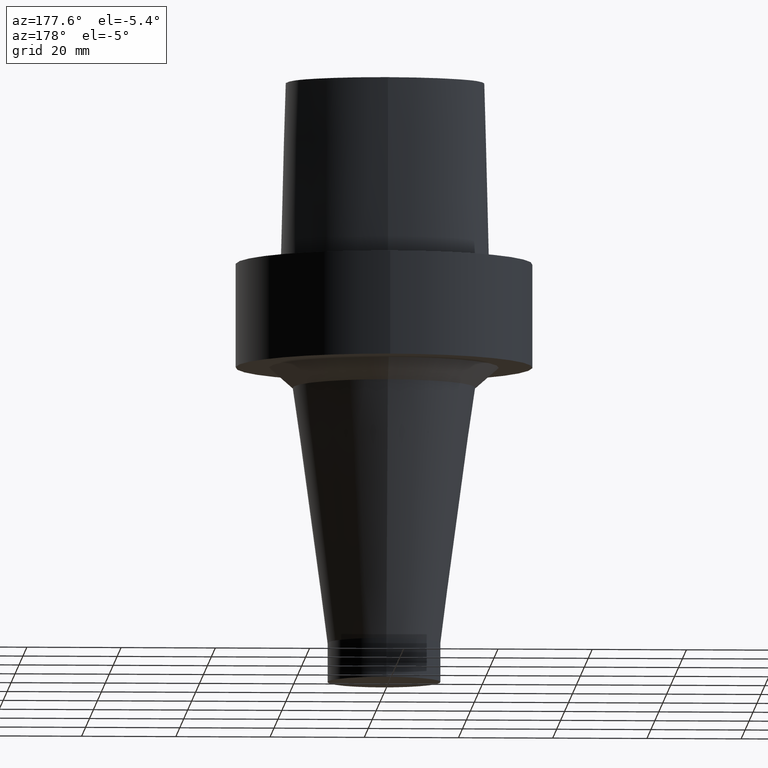
[diagram: clean part render]
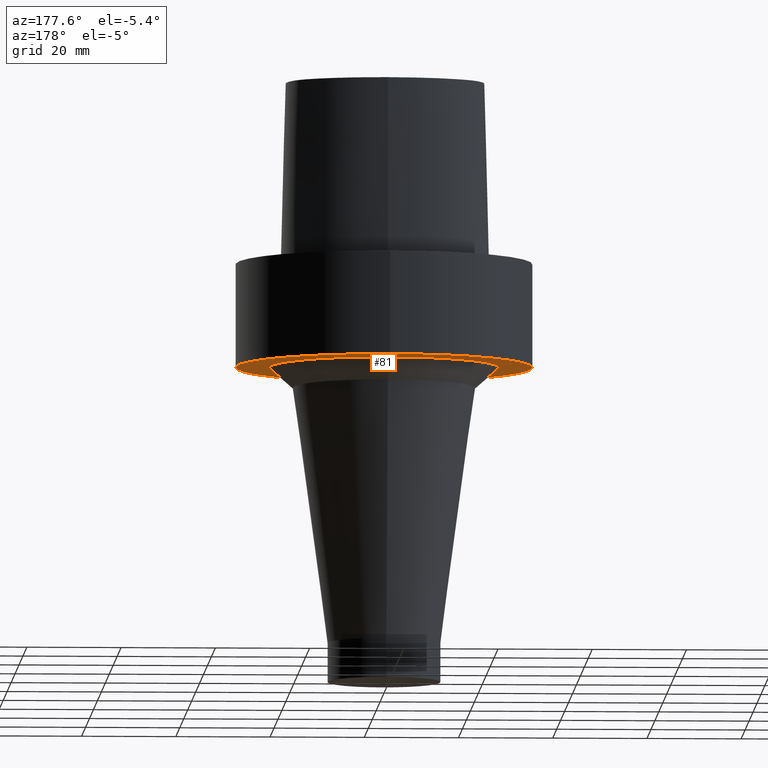
[diagram: same view with one face highlighted and labeled with its STEP entity id]
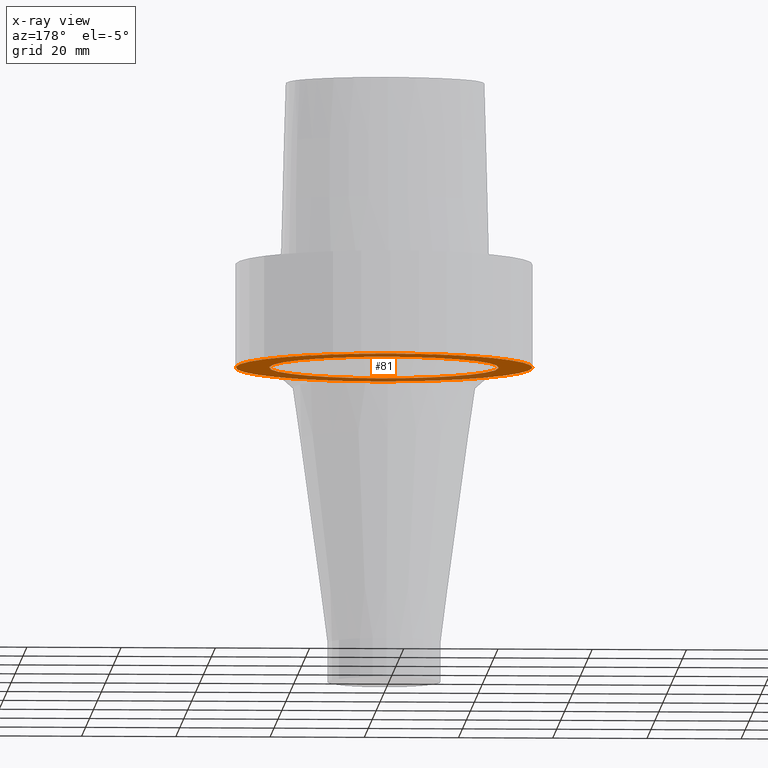
[diagram: x-ray of the same camera — body ghosted, the highlighted face saturated]
A machine part, auxiliary view. The second image highlights one B-rep face of the part: STEP entity #81.
The next image is the same camera in x-ray: the body ghosted, the highlighted face saturated — about 30% of this face is hidden behind the body in this view.
In plain terms, the highlighted planar face has unit normal (0, 0, -1).
Its self-contained STEP definition (entity closure, byte-faithful):
#81=ADVANCED_FACE('',(#101,#102),#103,.T.);
#101=FACE_BOUND('',#267,.T.);
#102=FACE_OUTER_BOUND('',#268,.T.);
#103=PLANE('',#269);
#267=EDGE_LOOP('',(#312));
#268=EDGE_LOOP('',(#313));
#269=AXIS2_PLACEMENT_3D('',#314,#315,#316);
#312=ORIENTED_EDGE('',*,*,#346,.F.);
#313=ORIENTED_EDGE('',*,*,#345,.T.);
#314=CARTESIAN_POINT('',(1.34711147906209E-015,27.92312091,-22.0));
#315=DIRECTION('',(6.12323399573677E-017,1.22464679914735E-016,-1.0));
#316=DIRECTION('',(-1.23259516440783E-032,1.0,1.22464679914735E-016));
#345=EDGE_CURVE('',#365,#365,#366,.T.);
#346=EDGE_CURVE('',#367,#367,#368,.T.);
#365=VERTEX_POINT('',#456);
#366=CIRCLE('',#457,31.4925);
#367=VERTEX_POINT('',#458);
#368=CIRCLE('',#459,24.35374182);
#456=CARTESIAN_POINT('',(1.34711147906209E-015,31.4925,-22.0));
#457=AXIS2_PLACEMENT_3D('',#475,#476,#477);
#458=CARTESIAN_POINT('',(1.34711147906209E-015,24.35374182,-22.0));
#459=AXIS2_PLACEMENT_3D('',#478,#479,#480);
#475=CARTESIAN_POINT('',(1.34711147906209E-015,2.69422295812418E-015,-22.0));
#476=DIRECTION('',(6.12323399573677E-017,1.22464679914735E-016,-1.0));
#477=DIRECTION('',(-1.23259516440783E-032,1.0,1.22464679914735E-016));
#478=CARTESIAN_POINT('',(1.34711147906209E-015,2.69422295812418E-015,-22.0));
#479=DIRECTION('',(6.12323399573677E-017,1.22464679914735E-016,-1.0));
#480=DIRECTION('',(-1.23259516440783E-032,1.0,1.22464679914735E-016));